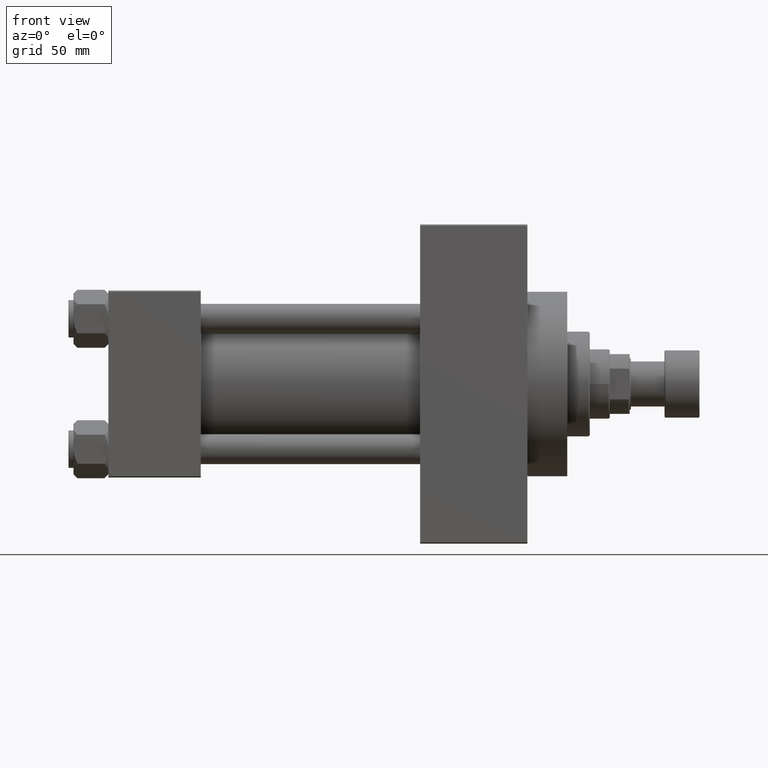
[diagram: clean part render]
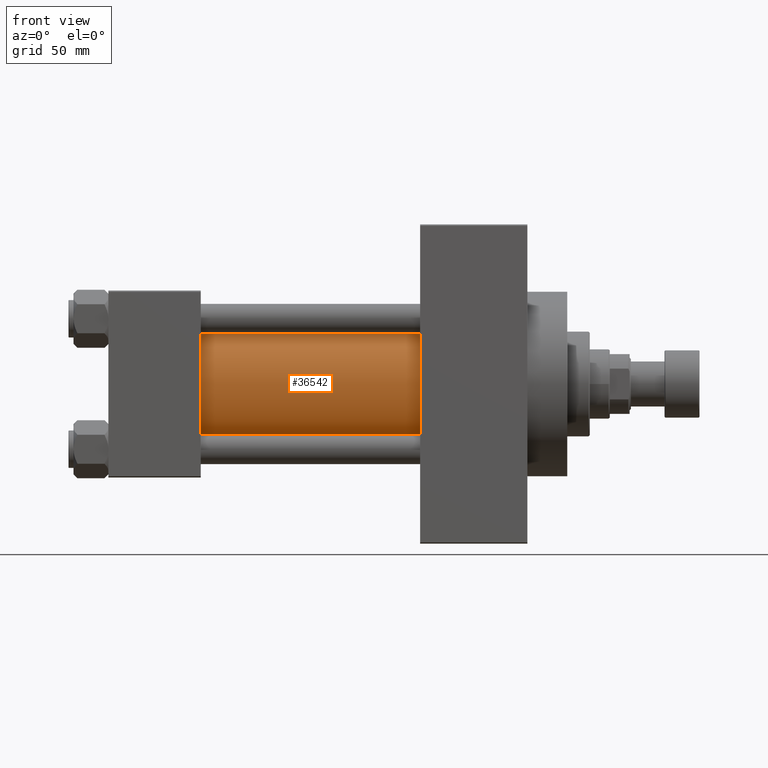
[diagram: same view with one face highlighted and labeled with its STEP entity id]
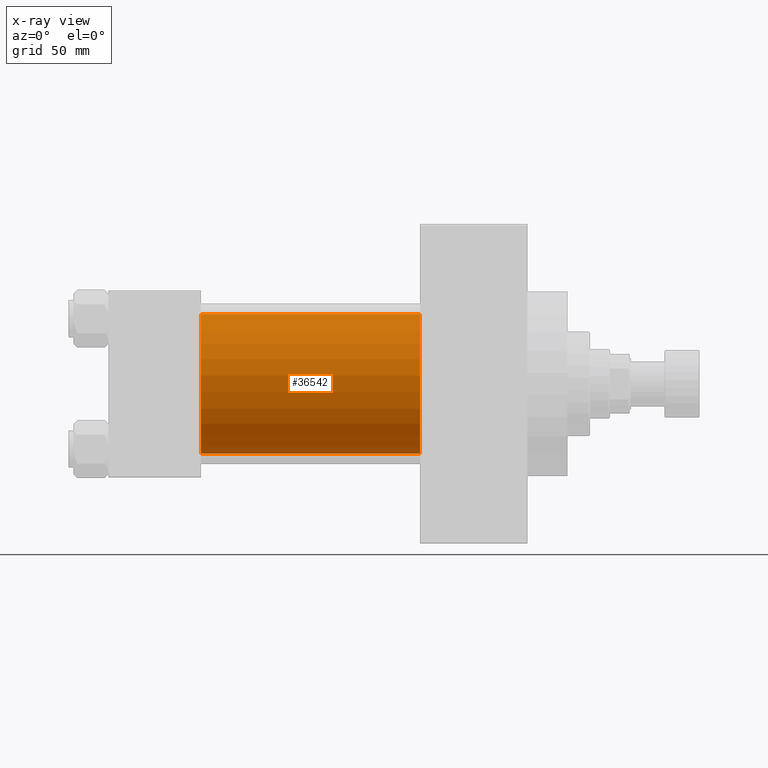
[diagram: x-ray of the same camera — body ghosted, the highlighted face saturated]
A machine part, front view. The second image highlights one B-rep face of the part: STEP entity #36542.
The next image is the same camera in x-ray: the body ghosted, the highlighted face saturated — about 0% of this face is hidden behind the body in this view.
In plain terms, the highlighted cylindrical surface (partial cylindrical patch) has radius 28 mm, axis along (-1, -0, -0).
Its self-contained STEP definition (entity closure, byte-faithful):
#767 = AXIS2_PLACEMENT_3D ( 'NONE', #25343, #10420, #21984 ) ;
#5177 = CARTESIAN_POINT ( 'NONE',  ( 125.0000000000000000, 8.269258236473784371E-16, -28.00000000000000000 ) ) ;
#5585 = EDGE_LOOP ( 'NONE', ( #42324, #36835, #45773, #37542 ) ) ;
#6104 = VERTEX_POINT ( 'NONE', #5177 ) ;
#7277 = CYLINDRICAL_SURFACE ( 'NONE', #767, 28.00000000000000000 ) ;
#8191 = CARTESIAN_POINT ( 'NONE',  ( 37.00000000000000711, -2.602085213965210642E-15, 0.000000000000000000 ) ) ;
#9409 = VECTOR ( 'NONE', #34205, 1000.000000000000000 ) ;
#10420 = DIRECTION ( 'NONE',  ( -1.000000000000000000, -0.000000000000000000, -0.000000000000000000 ) ) ;
#12988 = CARTESIAN_POINT ( 'NONE',  ( 125.0000000000000000, 8.269258236473784371E-16, -28.00000000000000000 ) ) ;
#14542 = CARTESIAN_POINT ( 'NONE',  ( 125.0000000000000000, -2.602085213965210642E-15, 28.00000000000000000 ) ) ;
#15150 = VERTEX_POINT ( 'NONE', #47663 ) ;
#15181 = DIRECTION ( 'NONE',  ( 1.000000000000000000, -0.000000000000000000, 0.000000000000000000 ) ) ;
#15982 = AXIS2_PLACEMENT_3D ( 'NONE', #8191, #15181, #26250 ) ;
#17967 = CARTESIAN_POINT ( 'NONE',  ( 37.00000000000000711, 8.269258236473784371E-16, -28.00000000000000000 ) ) ;
#19271 = DIRECTION ( 'NONE',  ( -1.000000000000000000, -0.000000000000000000, -0.000000000000000000 ) ) ;
#20123 = EDGE_CURVE ( 'NONE', #28058, #15150, #26954, .T. ) ;
#21984 = DIRECTION ( 'NONE',  ( 0.000000000000000000, 0.000000000000000000, 1.000000000000000000 ) ) ;
#22706 = VECTOR ( 'NONE', #19271, 1000.000000000000000 ) ;
#23380 = EDGE_CURVE ( 'NONE', #28058, #6104, #42823, .T. ) ;
#25343 = CARTESIAN_POINT ( 'NONE',  ( 125.0000000000000000, -2.602085213965210642E-15, 0.000000000000000000 ) ) ;
#26250 = DIRECTION ( 'NONE',  ( 0.000000000000000000, 0.000000000000000000, 1.000000000000000000 ) ) ;
#26954 = LINE ( 'NONE', #31029, #22706 ) ;
#27028 = EDGE_CURVE ( 'NONE', #15150, #27203, #36762, .T. ) ;
#27203 = VERTEX_POINT ( 'NONE', #17967 ) ;
#27350 = DIRECTION ( 'NONE',  ( 1.000000000000000000, 0.000000000000000000, 0.000000000000000000 ) ) ;
#28058 = VERTEX_POINT ( 'NONE', #14542 ) ;
#31029 = CARTESIAN_POINT ( 'NONE',  ( 125.0000000000000000, -2.602085213965210642E-15, 28.00000000000000000 ) ) ;
#34205 = DIRECTION ( 'NONE',  ( -1.000000000000000000, -0.000000000000000000, -0.000000000000000000 ) ) ;
#34670 = LINE ( 'NONE', #12988, #9409 ) ;
#36542 = ADVANCED_FACE ( 'NONE', ( #44386 ), #7277, .T. ) ;
#36762 = CIRCLE ( 'NONE', #15982, 28.00000000000000000 ) ;
#36835 = ORIENTED_EDGE ( 'NONE', *, *, #23380, .F. ) ;
#37542 = ORIENTED_EDGE ( 'NONE', *, *, #27028, .T. ) ;
#39723 = AXIS2_PLACEMENT_3D ( 'NONE', #45688, #27350, #42062 ) ;
#41070 = EDGE_CURVE ( 'NONE', #6104, #27203, #34670, .T. ) ;
#42062 = DIRECTION ( 'NONE',  ( 0.000000000000000000, 0.000000000000000000, -1.000000000000000000 ) ) ;
#42324 = ORIENTED_EDGE ( 'NONE', *, *, #41070, .F. ) ;
#42823 = CIRCLE ( 'NONE', #39723, 28.00000000000000000 ) ;
#44386 = FACE_OUTER_BOUND ( 'NONE', #5585, .T. ) ;
#45688 = CARTESIAN_POINT ( 'NONE',  ( 125.0000000000000000, -2.602085213965210642E-15, 0.000000000000000000 ) ) ;
#45773 = ORIENTED_EDGE ( 'NONE', *, *, #20123, .T. ) ;
#47663 = CARTESIAN_POINT ( 'NONE',  ( 37.00000000000000711, -2.602085213965210642E-15, 28.00000000000000000 ) ) ;